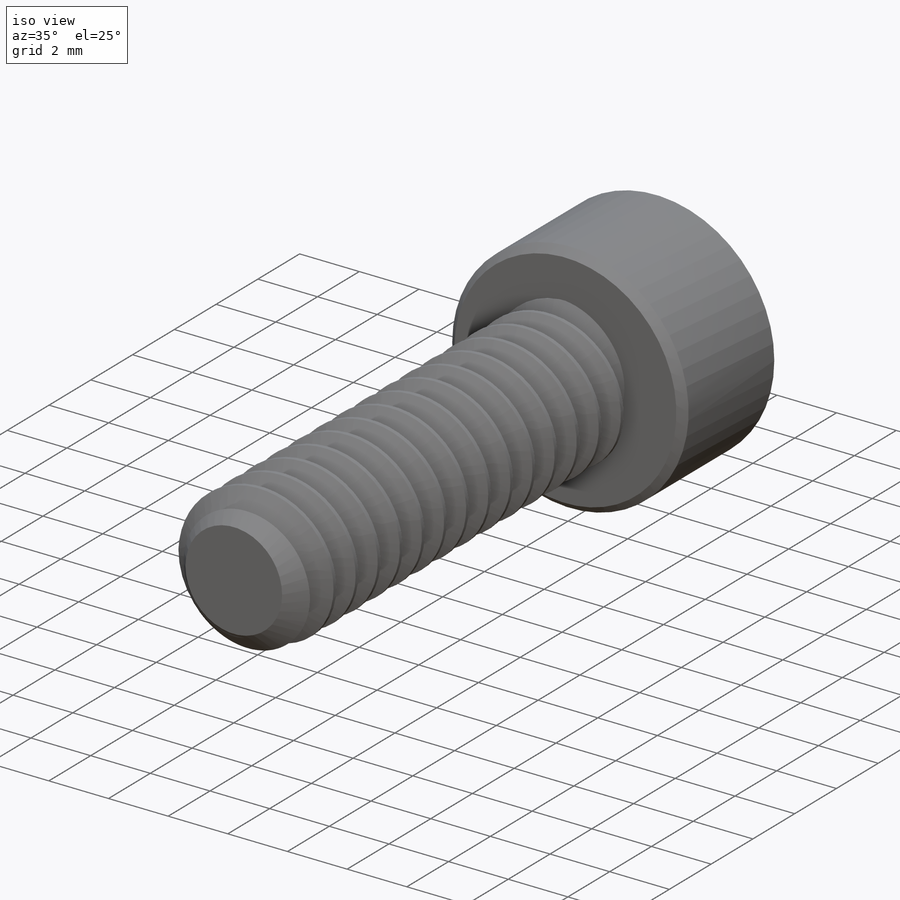
[diagram: iso view]
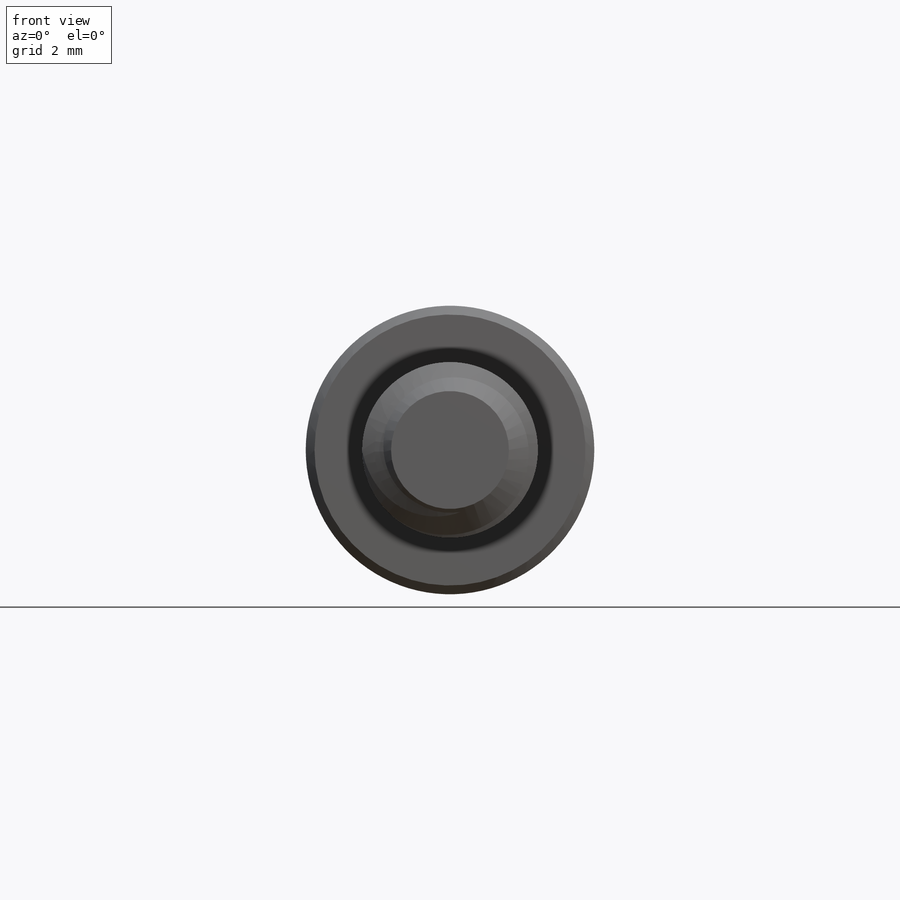
[diagram: front view]
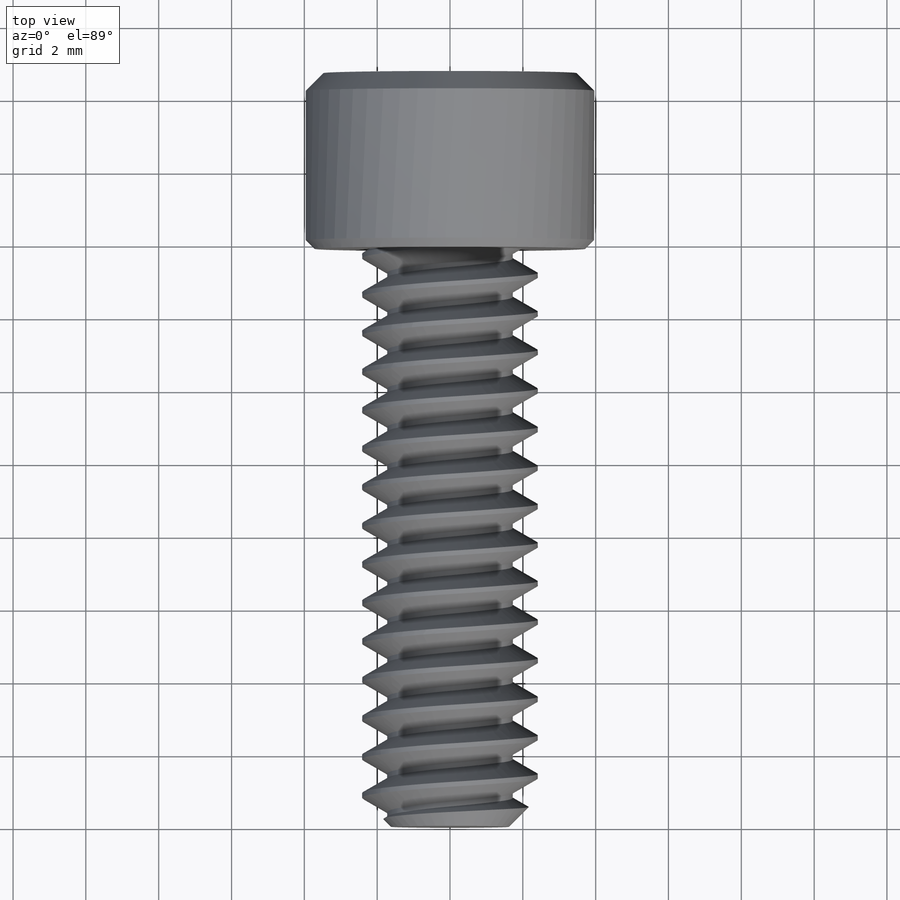
[diagram: top view]
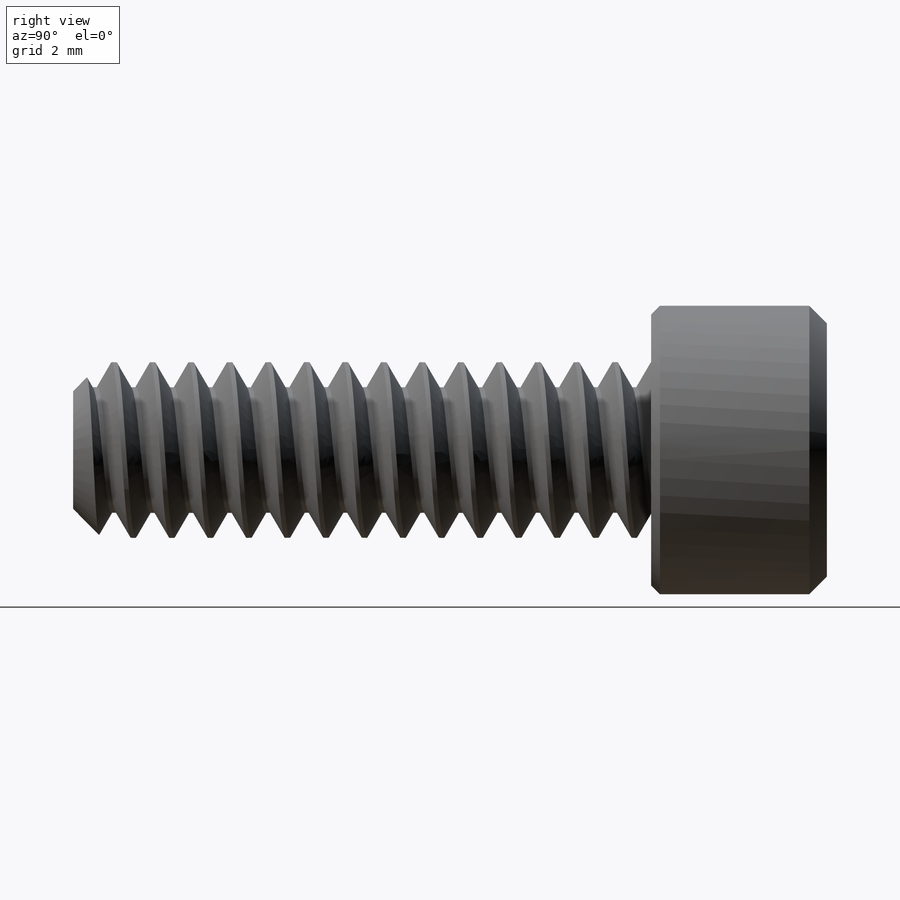
[diagram: right view]
SOLIDWORKS PART (.sldprt)
format: sldprt  version: not decoded by parser v0  size: 958,464 bytes
history: native  units: mm
features: sketch x7, chamfer x3, extrude x2, cut_extrude x2, material x1, helix x1, sweep x1 (+14 scaffold rows collapsed)
feature tree (31):
  scaffold x14  (default folders/planes/origin — collapsed)
  material  "Alloy Steel"
  sketch  "Sketch1"  dims[OD=4.826mm]
  extrude  "Extrude1"  Depth=15.875mm screw length=15.875mm
  sketch  "Sketch2"
  helix  "Helix/Spiral1"  Pitch=16.933333mm pitch=1.058333mm
  chamfer  "Chamfer3"  Distance=0.79375mm Angle=45deg
  sketch  "Sketch3"  dims[c1.D1=~0.132292mm c1.D2=~0.529167mm c1.D3=~1.069256mm c2.D3=60.0deg]
  sweep  "Cut-Sweep1"
  sketch  "Sketch6"  dims[head dia=7.9248mm]
  extrude  "Extrude2"  Depth=4.826mm head depth=4.826mm
  sketch  "Sketch7"  dims[hex dia=~3.96875mm]
  cut_extrude  "Cut-Extrude1"  Depth=2.976562mm
  sketch  "Sketch8"
  cut_extrude  "Cut-Extrude2"  Depth=0.4826mm
  chamfer  "Chamfer1"  Distance=0.4826mm Angle=45deg
  chamfer  "Chamfer2"  Distance=0.2413mm Angle=45deg
  sketch  "Sketch9"  dims[D1=~5.820833mm D2=4.826mm D3=7.9248mm D4=15.875mm]
decode coverage: 13 of 16 modeling features carry decoded parameters
note: ~ marks probable driven/reference dimensions
note: suppression state not decoded; provenance and decode notes live in map.json
